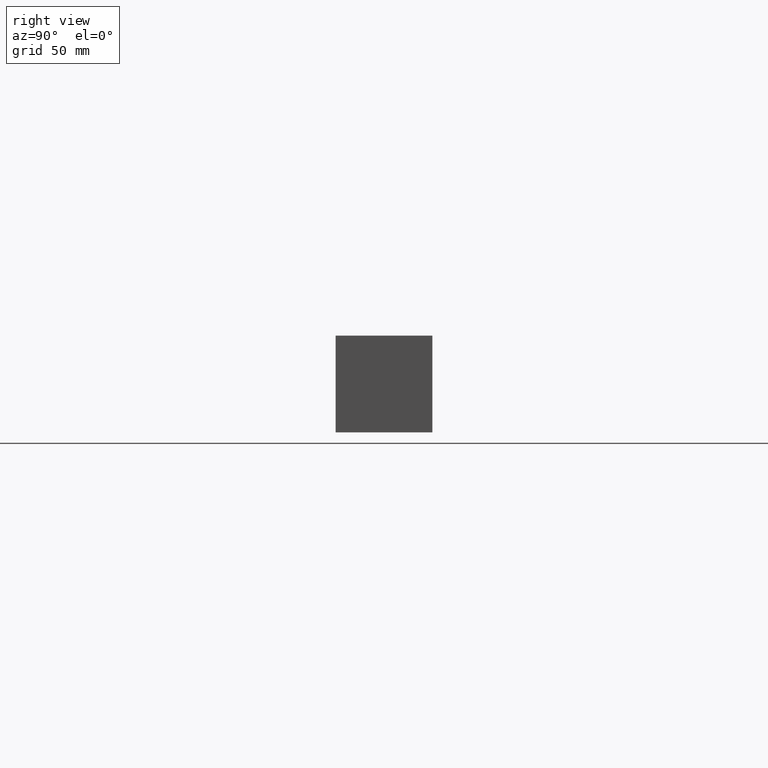
[diagram: clean part render]
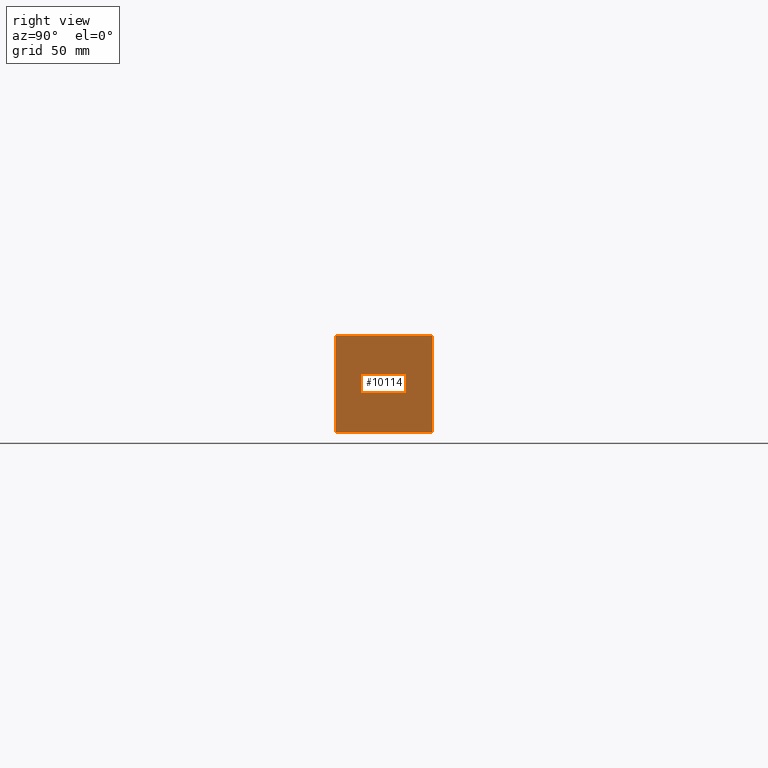
[diagram: same view with one face highlighted and labeled with its STEP entity id]
A machine part, right view. The second image highlights one B-rep face of the part: STEP entity #10114.
In plain terms, the highlighted planar face has unit normal (1, 0, 0).
Its self-contained STEP definition (entity closure, byte-faithful):
#1627=FACE_OUTER_BOUND('',#2240,.T.);
#2240=EDGE_LOOP('',(#8991,#8992,#8993,#8994));
#2507=LINE('',#15725,#3260);
#3011=LINE('',#18016,#3764);
#3012=LINE('',#18019,#3765);
#3013=LINE('',#18020,#3766);
#3260=VECTOR('',#11337,10.);
#3764=VECTOR('',#13407,10.);
#3765=VECTOR('',#13410,10.);
#3766=VECTOR('',#13411,10.);
#4073=VERTEX_POINT('',#15722);
#4074=VERTEX_POINT('',#15724);
#4720=VERTEX_POINT('',#18014);
#4721=VERTEX_POINT('',#18018);
#5179=EDGE_CURVE('',#4073,#4074,#2507,.T.);
#6157=EDGE_CURVE('',#4720,#4074,#3011,.T.);
#6158=EDGE_CURVE('',#4721,#4720,#3012,.T.);
#6159=EDGE_CURVE('',#4721,#4073,#3013,.T.);
#8991=ORIENTED_EDGE('',*,*,#6158,.T.);
#8992=ORIENTED_EDGE('',*,*,#6157,.T.);
#8993=ORIENTED_EDGE('',*,*,#5179,.F.);
#8994=ORIENTED_EDGE('',*,*,#6159,.F.);
#9273=PLANE('',#10972);
#10114=ADVANCED_FACE('',(#1627),#9273,.T.);
#10972=AXIS2_PLACEMENT_3D('',#18017,#13408,#13409);
#11337=DIRECTION('',(0.,1.,0.));
#13407=DIRECTION('',(0.,0.,1.));
#13408=DIRECTION('center_axis',(1.,0.,0.));
#13409=DIRECTION('ref_axis',(0.,1.,0.));
#13410=DIRECTION('',(0.,1.,0.));
#13411=DIRECTION('',(0.,0.,1.));
#15722=CARTESIAN_POINT('',(330.2,0.,44.45));
#15724=CARTESIAN_POINT('',(330.2,44.45,44.45));
#15725=CARTESIAN_POINT('',(330.2,0.,44.45));
#18014=CARTESIAN_POINT('',(330.2,44.45,0.));
#18016=CARTESIAN_POINT('',(330.2,44.45,0.));
#18017=CARTESIAN_POINT('Origin',(330.2,0.,0.));
#18018=CARTESIAN_POINT('',(330.2,0.,0.));
#18019=CARTESIAN_POINT('',(330.2,0.,0.));
#18020=CARTESIAN_POINT('',(330.2,0.,0.));